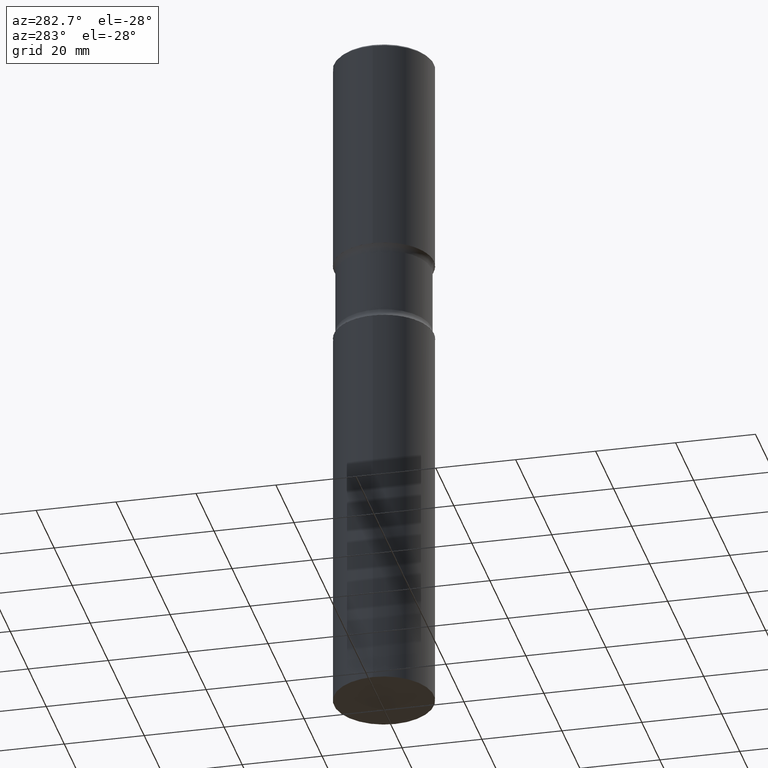
[diagram: clean part render]
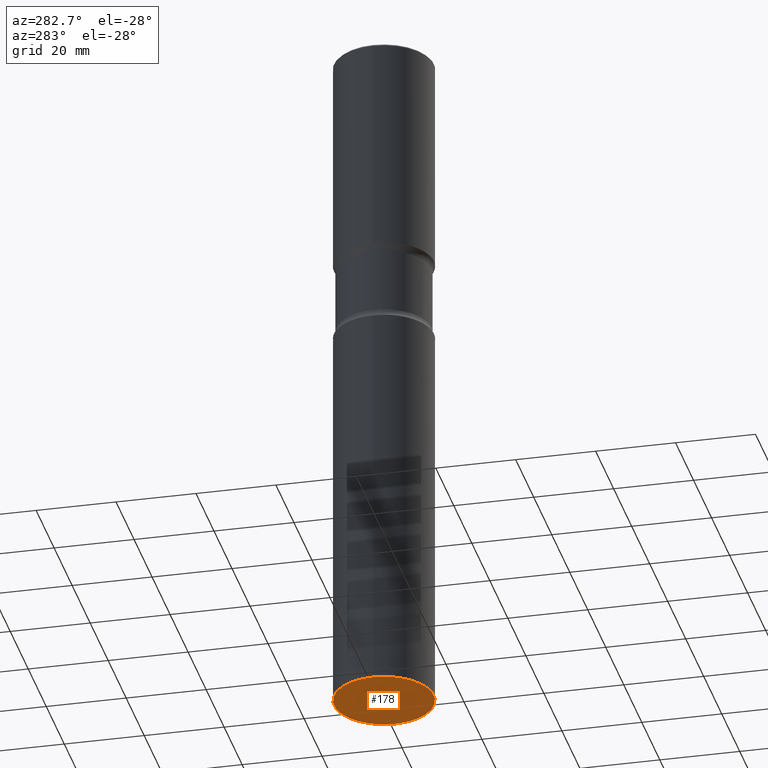
[diagram: same view with one face highlighted and labeled with its STEP entity id]
A machine part, auxiliary view. The second image highlights one B-rep face of the part: STEP entity #178.
In plain terms, the highlighted planar face has unit normal (0, -0, -1).
Its self-contained STEP definition (entity closure, byte-faithful):
#39 = AXIS2_PLACEMENT_3D ( 'NONE', #488, #142, #107 ) ;
#53 = CARTESIAN_POINT ( 'NONE',  ( 1.684879098085435385E-28, -2.405560812836150510E-14, -6.889800000000000146 ) ) ;
#62 = CIRCLE ( 'NONE', #311, 0.4921499999999999764 ) ;
#107 = DIRECTION ( 'NONE',  ( -1.000000000000000000, 6.982962677686265922E-15, -4.876176775795935793E-29 ) ) ;
#137 = ORIENTED_EDGE ( 'NONE', *, *, #451, .F. ) ;
#142 = DIRECTION ( 'NONE',  ( 2.438088387897960049E-29, -3.491481338843145188E-15, -1.000000000000000000 ) ) ;
#171 = CARTESIAN_POINT ( 'NONE',  ( 1.684879098085435385E-28, -2.405560812836150510E-14, -6.889800000000000146 ) ) ;
#178 = ADVANCED_FACE ( 'NONE', ( #185 ), #338, .T. ) ;
#185 = FACE_OUTER_BOUND ( 'NONE', #274, .T. ) ;
#192 = ORIENTED_EDGE ( 'NONE', *, *, #493, .F. ) ;
#206 = DIRECTION ( 'NONE',  ( 1.000000000000000000, -6.982962677686265922E-15, 0.000000000000000000 ) ) ;
#274 = EDGE_LOOP ( 'NONE', ( #137, #192 ) ) ;
#284 = CARTESIAN_POINT ( 'NONE',  ( 0.4921499999999999764, -2.749227321018479930E-14, -6.889800000000000146 ) ) ;
#288 = VERTEX_POINT ( 'NONE', #313 ) ;
#311 = AXIS2_PLACEMENT_3D ( 'NONE', #171, #408, #405 ) ;
#313 = CARTESIAN_POINT ( 'NONE',  ( -0.4921499999999999764, -1.368569103880543813E-14, -6.889800000000000146 ) ) ;
#338 = PLANE ( 'NONE',  #39 ) ;
#352 = AXIS2_PLACEMENT_3D ( 'NONE', #53, #477, #206 ) ;
#383 = VERTEX_POINT ( 'NONE', #284 ) ;
#405 = DIRECTION ( 'NONE',  ( 1.000000000000000000, -6.982962677686265922E-15, 0.000000000000000000 ) ) ;
#408 = DIRECTION ( 'NONE',  ( -2.445468806185136597E-29, 3.491481338843145583E-15, 1.000000000000000000 ) ) ;
#442 = CIRCLE ( 'NONE', #352, 0.4921499999999999764 ) ;
#451 = EDGE_CURVE ( 'NONE', #383, #288, #442, .T. ) ;
#477 = DIRECTION ( 'NONE',  ( -2.445468806185136597E-29, 3.491481338843145583E-15, 1.000000000000000000 ) ) ;
#488 = CARTESIAN_POINT ( 'NONE',  ( 6.166476271625392928E-29, -3.935329079157235124E-14, -6.889800000000000146 ) ) ;
#493 = EDGE_CURVE ( 'NONE', #288, #383, #62, .T. ) ;